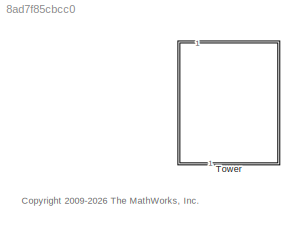
MODEL slx_8ad7f85cbcc0
KIND library
CONFIG EnableMultiTasking = on
CONFIG SolverName = ode45
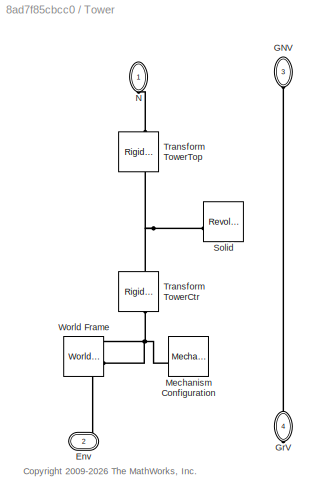
BLOCK [SubSystem] Tower
  NameLocation = right
BLOCK [PMIOPort] Tower/Env
  Port = 2
  Side = Right
BLOCK [PMIOPort] Tower/GNV
  NameLocation = left
  Port = 3
  Side = Left
  Tag = PMCPort
BLOCK [PMIOPort] Tower/GrV
  NameLocation = left
  Port = 4
  Side = Right
  Tag = PMCPort
BLOCK [Reference] Tower/Mechanism Configuration  REF=sm_lib/Utilities/Mechanism
Configuration
  SourceBlock = sm_lib/Utilities/Mechanism\nConfiguration
  SourceType = Mechanism\nConfiguration
BLOCK [PMIOPort] Tower/N
  NameLocation = left
  Side = Left
BLOCK [Reference] Tower/Solid  REF=sm_lib/Body Elements/Revolved Solid
  NameLocation = top
  SourceBlock = sm_lib/Body Elements/Revolved Solid
  SourceType = Revolved Solid
BLOCK [Reference] Tower/Transform TowerCtr  REF=sm_lib/Frames and
Transforms/Rigid
Transform
  NameLocation = right
  SourceBlock = sm_lib/Frames and\nTransforms/Rigid\nTransform
  SourceType = Rigid\nTransform
BLOCK [Reference] Tower/Transform TowerTop  REF=sm_lib/Frames and
Transforms/Rigid
Transform
  NameLocation = right
  SourceBlock = sm_lib/Frames and\nTransforms/Rigid\nTransform
  SourceType = Rigid\nTransform
BLOCK [Reference] Tower/World Frame  REF=sm_lib/Frames and
Transforms/World Frame
  SourceBlock = sm_lib/Frames and\nTransforms/World Frame
  SourceType = World Frame
ANNOTATION (root): <copyright redacted>
ANNOTATION Tower: <copyright redacted>
PNET net1: Tower/Env:RConn1 -- Tower/Mechanism Configuration:RConn1 -- Tower/Transform TowerCtr:LConn1 -- Tower/World Frame:RConn1
PLINE Tower/GNV:RConn1 -- Tower/GrV:RConn1
PLINE Tower/N:RConn1 -- Tower/Transform TowerTop:RConn1
PNET net2: Tower/Solid:RConn1 -- Tower/Transform TowerCtr:RConn1 -- Tower/Transform TowerTop:LConn1
note: PNET lines group multi-terminal physical nets as a canonical sorted terminal list (undirected conserving connections); 2-terminal nets keep the pairwise PLINE form
